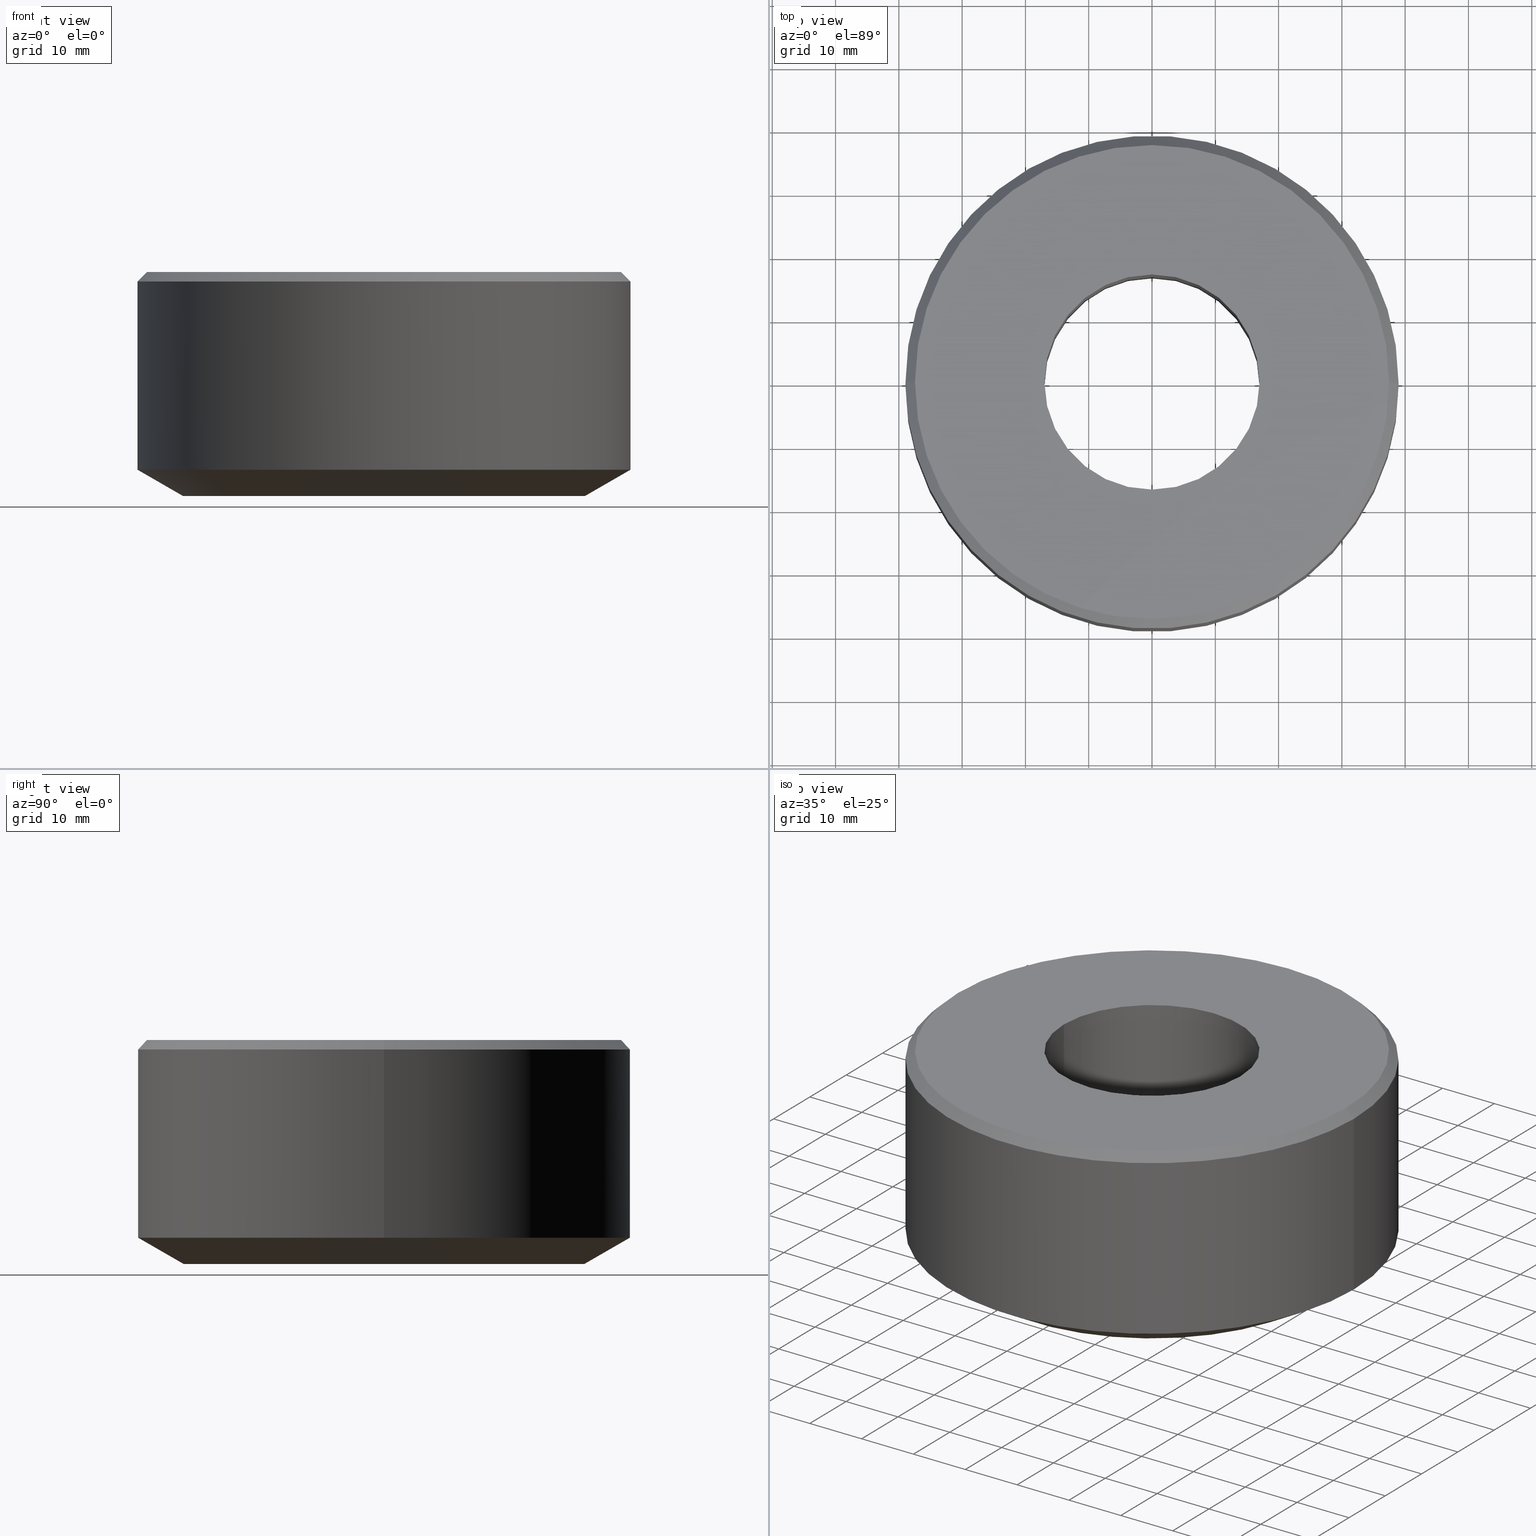
[diagram: canonical four-view strip — front | top / right | iso, engineering-drawing reading convention]
A machine part, canonical four-view strip (front | top / right | iso — engineering-drawing reading convention). The complete STEP part file that produces these views, byte-faithful:
ISO-10303-21;
HEADER;
FILE_DESCRIPTION (( 'STEP AP203' ),
    '1' );
FILE_NAME ('UM ER 50 SLOTTED.STEP',
    '2019-04-22T07:56:41',
    ( '' ),
    ( '' ),
    'SwSTEP 2.0',
    'SolidWorks 2014',
    '' );
FILE_SCHEMA (( 'CONFIG_CONTROL_DESIGN' ));
ENDSEC;

DATA;
#1 = DIRECTION ( 'NONE',  ( -0.0000000000000000000, -0.0000000000000000000, 1.000000000000000000 ) ) ;
#2 = ORIENTED_EDGE ( 'NONE', *, *, #175, .F. ) ;
#3 = CARTESIAN_POINT ( 'NONE',  ( 0.0000000000000000000, 0.0000000000000000000, 16.20000000000000600 ) ) ;
#4 = FACE_OUTER_BOUND ( 'NONE', #50, .T. ) ;
#5 = DIRECTION ( 'NONE',  ( 1.000000000000000000, 0.0000000000000000000, 0.0000000000000000000 ) ) ;
#6 = CARTESIAN_POINT ( 'NONE',  ( 0.0000000000000000000, 0.0000000000000000000, 16.20000000000000600 ) ) ;
#7 = ORIENTED_EDGE ( 'NONE', *, *, #235, .T. ) ;
#8 = LINE ( 'NONE', #252, #223 ) ;
#9 = DIRECTION ( 'NONE',  ( -1.000000000000000000, 0.0000000000000000000, -0.0000000000000000000 ) ) ;
#10 = ORIENTED_EDGE ( 'NONE', *, *, #235, .F. ) ;
#11 = LOCAL_TIME ( 13, 26, 41.00000000000000000, #81 ) ;
#12 = FACE_OUTER_BOUND ( 'NONE', #77, .T. ) ;
#13 = ORIENTED_EDGE ( 'NONE', *, *, #337, .F. ) ;
#14 = CARTESIAN_POINT ( 'NONE',  ( 31.75000000000000000, 0.0000000000000000000, -17.69999999999999900 ) ) ;
#15 = DIRECTION ( 'NONE',  ( -0.0000000000000000000, -0.0000000000000000000, 1.000000000000000000 ) ) ;
#16 = DIRECTION ( 'NONE',  ( -0.0000000000000000000, -0.0000000000000000000, 1.000000000000000000 ) ) ;
#17 = ORIENTED_EDGE ( 'NONE', *, *, #242, .F. ) ;
#18 = FACE_OUTER_BOUND ( 'NONE', #159, .T. ) ;
#19 = APPROVAL ( #317, 'UNSPECIFIED' ) ;
#20 = APPROVAL_DATE_TIME ( #92, #34 ) ;
#21 = PERSON_AND_ORGANIZATION_ROLE ( 'creator' ) ;
#22 = CARTESIAN_POINT ( 'NONE',  ( 38.95000000000000300, 4.769999282678941600E-015, 16.20000000000000600 ) ) ;
#23 = AXIS2_PLACEMENT_3D ( 'NONE', #79, #139, #68 ) ;
#24 = CARTESIAN_POINT ( 'NONE',  ( 0.0000000000000000000, 0.0000000000000000000, 17.69999999999999900 ) ) ;
#25 = PRODUCT_DEFINITION_FORMATION_WITH_SPECIFIED_SOURCE ( 'ANY', '', #319, .NOT_KNOWN. ) ;
#26 = VECTOR ( 'NONE', #205, 1000.000000000000000 ) ;
#27 = ADVANCED_FACE ( 'NONE', ( #137 ), #42, .F. ) ;
#28 = ORIENTED_EDGE ( 'NONE', *, *, #280, .F. ) ;
#29 = APPROVAL_PERSON_ORGANIZATION ( #96, #34, #244 ) ;
#30 = CARTESIAN_POINT ( 'NONE',  ( 0.0000000000000000000, 0.0000000000000000000, 0.0000000000000000000 ) ) ;
#31 = DIRECTION ( 'NONE',  ( 1.000000000000000000, 0.0000000000000000000, 0.0000000000000000000 ) ) ;
#32 = EDGE_LOOP ( 'NONE', ( #17, #2, #329, #201 ) ) ;
#33 = DIRECTION ( 'NONE',  ( 0.0000000000000000000, 0.0000000000000000000, -1.000000000000000000 ) ) ;
#34 = APPROVAL ( #46, 'UNSPECIFIED' ) ;
#35 = AXIS2_PLACEMENT_3D ( 'NONE', #269, #102, #299 ) ;
#36 = CC_DESIGN_APPROVAL ( #34, ( #25 ) ) ;
#37 = CARTESIAN_POINT ( 'NONE',  ( 0.0000000000000000000, 31.75000000000000000, -17.69999999999999900 ) ) ;
#38 = CARTESIAN_POINT ( 'NONE',  ( 38.95000000000000300, 0.0000000000000000000, 43.26054273766887100 ) ) ;
#39 = DIRECTION ( 'NONE',  ( 1.000000000000000000, 0.0000000000000000000, 0.0000000000000000000 ) ) ;
#40 = CARTESIAN_POINT ( 'NONE',  ( 16.99999999999999600, 0.0000000000000000000, 17.69999999999999900 ) ) ;
#41 = AXIS2_PLACEMENT_3D ( 'NONE', #37, #333, #178 ) ;
#42 = CYLINDRICAL_SURFACE ( 'NONE', #231, 17.00000000000000000 ) ;
#43 = APPROVAL_DATE_TIME ( #111, #19 ) ;
#44 = ORIENTED_EDGE ( 'NONE', *, *, #123, .F. ) ;
#45 = CARTESIAN_POINT ( 'NONE',  ( 0.0000000000000000000, 0.0000000000000000000, 43.26054273766887100 ) ) ;
#46 = APPROVAL_STATUS ( 'not_yet_approved' ) ;
#47 = LINE ( 'NONE', #206, #263 ) ;
#48 = CIRCLE ( 'NONE', #254, 17.00000000000000000 ) ;
#49 = CALENDAR_DATE ( 2019, 22, 4 ) ;
#50 = EDGE_LOOP ( 'NONE', ( #10, #64, #199, #61 ) ) ;
#51 = DIRECTION ( 'NONE',  ( 1.000000000000000000, 0.0000000000000000000, 0.0000000000000000000 ) ) ;
#52 = VERTEX_POINT ( 'NONE', #97 ) ;
#53 = ORIENTED_EDGE ( 'NONE', *, *, #309, .F. ) ;
#54 = AXIS2_PLACEMENT_3D ( 'NONE', #118, #310, #152 ) ;
#55 = ORIENTED_EDGE ( 'NONE', *, *, #246, .F. ) ;
#56 = DIRECTION ( 'NONE',  ( -0.0000000000000000000, -0.0000000000000000000, 1.000000000000000000 ) ) ;
#57 = DATE_AND_TIME ( #129, #204 ) ;
#58 = DIRECTION ( 'NONE',  ( -0.0000000000000000000, -0.0000000000000000000, 1.000000000000000000 ) ) ;
#59 = ORIENTED_EDGE ( 'NONE', *, *, #113, .F. ) ;
#60 = ADVANCED_FACE ( 'NONE', ( #330 ), #158, .T. ) ;
#61 = ORIENTED_EDGE ( 'NONE', *, *, #287, .F. ) ;
#62 = CC_DESIGN_PERSON_AND_ORGANIZATION_ASSIGNMENT ( #157, #295, ( #251 ) ) ;
#63 = ORIENTED_EDGE ( 'NONE', *, *, #93, .F. ) ;
#64 = ORIENTED_EDGE ( 'NONE', *, *, #292, .T. ) ;
#65 = DIRECTION ( 'NONE',  ( 0.8660254037844396000, 0.0000000000000000000, 0.4999999999999983900 ) ) ;
#66 = PERSON_AND_ORGANIZATION ( #339, #216 ) ;
#67 = DIRECTION ( 'NONE',  ( -0.0000000000000000000, -0.0000000000000000000, 1.000000000000000000 ) ) ;
#68 = DIRECTION ( 'NONE',  ( 1.000000000000000000, 0.0000000000000000000, 0.0000000000000000000 ) ) ;
#69 = CARTESIAN_POINT ( 'NONE',  ( 17.00000000000000000, 0.0000000000000000000, -17.70000000000000600 ) ) ;
#70 = AXIS2_PLACEMENT_3D ( 'NONE', #150, #335, #179 ) ;
#71 = DIRECTION ( 'NONE',  ( -0.0000000000000000000, -0.0000000000000000000, 1.000000000000000000 ) ) ;
#72 = EDGE_LOOP ( 'NONE', ( #84, #342 ) ) ;
#73 = APPROVAL_PERSON_ORGANIZATION ( #146, #19, #162 ) ;
#74 = CIRCLE ( 'NONE', #224, 38.95000000000000300 ) ;
#75 = ADVANCED_FACE ( 'NONE', ( #189, #182 ), #277, .F. ) ;
#76 = PERSON_AND_ORGANIZATION_ROLE ( 'creator' ) ;
#77 = EDGE_LOOP ( 'NONE', ( #55, #288, #120, #268 ) ) ;
#78 = LINE ( 'NONE', #14, #230 ) ;
#79 = CARTESIAN_POINT ( 'NONE',  ( 0.0000000000000000000, 0.0000000000000000000, 43.26054273766887100 ) ) ;
#80 = DIRECTION ( 'NONE',  ( -0.0000000000000000000, -0.0000000000000000000, 1.000000000000000000 ) ) ;
#81 = COORDINATED_UNIVERSAL_TIME_OFFSET ( 5, 30, .AHEAD. ) ;
#82 = LINE ( 'NONE', #86, #147 ) ;
#83 = ADVANCED_FACE ( 'NONE', ( #250 ), #222, .T. ) ;
#84 = ORIENTED_EDGE ( 'NONE', *, *, #175, .T. ) ;
#85 = AXIS2_PLACEMENT_3D ( 'NONE', #261, #156, #169 ) ;
#86 = CARTESIAN_POINT ( 'NONE',  ( -17.00000000000000000, 2.081899558550500300E-015, 43.26054273766887100 ) ) ;
#87 = CC_DESIGN_APPROVAL ( #243, ( #348 ) ) ;
#88 = ORIENTED_EDGE ( 'NONE', *, *, #93, .T. ) ;
#89 = AXIS2_PLACEMENT_3D ( 'NONE', #324, #173, #5 ) ;
#90 = CIRCLE ( 'NONE', #54, 16.99999999999999600 ) ;
#91 = ORIENTED_EDGE ( 'NONE', *, *, #328, .T. ) ;
#92 = DATE_AND_TIME ( #166, #241 ) ;
#93 = EDGE_CURVE ( 'NONE', #219, #211, #110, .T. ) ;
#94 = DIRECTION ( 'NONE',  ( -0.0000000000000000000, -0.0000000000000000000, 1.000000000000000000 ) ) ;
#95 = AXIS2_PLACEMENT_3D ( 'NONE', #119, #239, #151 ) ;
#96 = PERSON_AND_ORGANIZATION ( #339, #216 ) ;
#97 = CARTESIAN_POINT ( 'NONE',  ( -17.00000000000000000, 2.081899558550500300E-015, -17.70000000000000600 ) ) ;
#98 = DIRECTION ( 'NONE',  ( 1.000000000000000000, 0.0000000000000000000, 0.0000000000000000000 ) ) ;
#99 = MANIFOLD_SOLID_BREP ( 'Revolve1', #341 ) ;
#100 = SECURITY_CLASSIFICATION_LEVEL ( 'unclassified' ) ;
#101 = ORIENTED_EDGE ( 'NONE', *, *, #181, .F. ) ;
#102 = DIRECTION ( 'NONE',  ( -0.0000000000000000000, -0.0000000000000000000, 1.000000000000000000 ) ) ;
#103 =( LENGTH_UNIT ( ) NAMED_UNIT ( * ) SI_UNIT ( .MILLI., .METRE. ) );
#104 = CARTESIAN_POINT ( 'NONE',  ( -31.75000000000000000, 4.329126434985894400E-015, -17.69999999999999900 ) ) ;
#105 =( GEOMETRIC_REPRESENTATION_CONTEXT ( 3 ) GLOBAL_UNCERTAINTY_ASSIGNED_CONTEXT ( ( #170 ) ) GLOBAL_UNIT_ASSIGNED_CONTEXT ( ( #103, #301, #136 ) ) REPRESENTATION_CONTEXT ( 'NONE', 'WORKASPACE' ) );
#106 = VECTOR ( 'NONE', #141, 1000.000000000000000 ) ;
#107 = CC_DESIGN_PERSON_AND_ORGANIZATION_ASSIGNMENT ( #234, #264, ( #25 ) ) ;
#108 = LINE ( 'NONE', #294, #106 ) ;
#109 = DIRECTION ( 'NONE',  ( -1.000000000000000000, 0.0000000000000000000, 0.0000000000000000000 ) ) ;
#110 = CIRCLE ( 'NONE', #227, 38.95000000000000300 ) ;
#111 = DATE_AND_TIME ( #190, #259 ) ;
#112 = ORIENTED_EDGE ( 'NONE', *, *, #267, .T. ) ;
#113 = EDGE_CURVE ( 'NONE', #52, #291, #82, .T. ) ;
#114 = PLANE ( 'NONE',  #41 ) ;
#115 = CYLINDRICAL_SURFACE ( 'NONE', #318, 38.95000000000000300 ) ;
#116 = CIRCLE ( 'NONE', #282, 37.45000000000000300 ) ;
#117 = LOCAL_TIME ( 13, 26, 41.00000000000000000, #198 ) ;
#118 = CARTESIAN_POINT ( 'NONE',  ( 0.0000000000000000000, 0.0000000000000000000, 17.69999999999999900 ) ) ;
#119 = CARTESIAN_POINT ( 'NONE',  ( 0.0000000000000000000, 0.0000000000000000000, -17.69999999999999900 ) ) ;
#120 = ORIENTED_EDGE ( 'NONE', *, *, #238, .T. ) ;
#121 = VERTEX_POINT ( 'NONE', #104 ) ;
#122 = VERTEX_POINT ( 'NONE', #144 ) ;
#123 = EDGE_CURVE ( 'NONE', #122, #273, #74, .T. ) ;
#124 = ORIENTED_EDGE ( 'NONE', *, *, #313, .T. ) ;
#125 = PRODUCT_RELATED_PRODUCT_CATEGORY ( 'detail', '', ( #319 ) ) ;
#126 = PERSON_AND_ORGANIZATION_ROLE ( 'design_owner' ) ;
#127 = DIRECTION ( 'NONE',  ( 1.000000000000000000, 0.0000000000000000000, 0.0000000000000000000 ) ) ;
#128 = DATE_TIME_ROLE ( 'classification_date' ) ;
#129 = CALENDAR_DATE ( 2019, 22, 4 ) ;
#130 = DESIGN_CONTEXT ( 'detailed design', #315, 'design' ) ;
#131 = CC_DESIGN_DATE_AND_TIME_ASSIGNMENT ( #177, #214, ( #348 ) ) ;
#132 = ORIENTED_EDGE ( 'NONE', *, *, #113, .T. ) ;
#133 = CC_DESIGN_PERSON_AND_ORGANIZATION_ASSIGNMENT ( #140, #126, ( #319 ) ) ;
#134 = ORIENTED_EDGE ( 'NONE', *, *, #287, .T. ) ;
#135 = ADVANCED_FACE ( 'NONE', ( #12 ), #240, .T. ) ;
#136 =( NAMED_UNIT ( * ) SI_UNIT ( $, .STERADIAN. ) SOLID_ANGLE_UNIT ( ) );
#137 = FACE_OUTER_BOUND ( 'NONE', #332, .T. ) ;
#138 = ORIENTED_EDGE ( 'NONE', *, *, #280, .T. ) ;
#139 = DIRECTION ( 'NONE',  ( -0.0000000000000000000, -0.0000000000000000000, 1.000000000000000000 ) ) ;
#140 = PERSON_AND_ORGANIZATION ( #339, #216 ) ;
#141 = DIRECTION ( 'NONE',  ( -0.7071067811865491300, 0.0000000000000000000, -0.7071067811865459100 ) ) ;
#142 = CARTESIAN_POINT ( 'NONE',  ( 38.95000000000000300, 4.769999282678941600E-015, 16.20000000000000600 ) ) ;
#143 = CARTESIAN_POINT ( 'NONE',  ( 0.0000000000000000000, 0.0000000000000000000, -13.54307806183471100 ) ) ;
#144 = CARTESIAN_POINT ( 'NONE',  ( -38.95000000000000300, 0.0000000000000000000, 16.20000000000000600 ) ) ;
#145 = ORIENTED_EDGE ( 'NONE', *, *, #238, .F. ) ;
#146 = PERSON_AND_ORGANIZATION ( #339, #216 ) ;
#147 = VECTOR ( 'NONE', #56, 1000.000000000000000 ) ;
#148 = DIRECTION ( 'NONE',  ( 1.000000000000000000, 0.0000000000000000000, 0.0000000000000000000 ) ) ;
#149 = ORIENTED_EDGE ( 'NONE', *, *, #313, .F. ) ;
#150 = CARTESIAN_POINT ( 'NONE',  ( 0.0000000000000000000, 0.0000000000000000000, -13.54307806183471100 ) ) ;
#151 = DIRECTION ( 'NONE',  ( 1.000000000000000000, 0.0000000000000000000, 0.0000000000000000000 ) ) ;
#152 = DIRECTION ( 'NONE',  ( 1.000000000000000000, 0.0000000000000000000, 0.0000000000000000000 ) ) ;
#153 = ORIENTED_EDGE ( 'NONE', *, *, #154, .F. ) ;
#154 = EDGE_CURVE ( 'NONE', #219, #273, #307, .T. ) ;
#155 = AXIS2_PLACEMENT_3D ( 'NONE', #167, #1, #194 ) ;
#156 = DIRECTION ( 'NONE',  ( -0.0000000000000000000, -0.0000000000000000000, 1.000000000000000000 ) ) ;
#157 = PERSON_AND_ORGANIZATION ( #339, #216 ) ;
#158 = CONICAL_SURFACE ( 'NONE', #85, 31.75000000000000000, 1.047197551196599600 ) ;
#159 = EDGE_LOOP ( 'NONE', ( #28, #132, #340, #149 ) ) ;
#160 = APPLICATION_PROTOCOL_DEFINITION ( 'international standard', 'config_control_design', 1994, #315 ) ;
#161 = CARTESIAN_POINT ( 'NONE',  ( 0.0000000000000000000, 0.0000000000000000000, 17.69999999999999900 ) ) ;
#162 = APPROVAL_ROLE ( '' ) ;
#163 = EDGE_CURVE ( 'NONE', #208, #291, #90, .T. ) ;
#164 = CIRCLE ( 'NONE', #35, 31.75000000000000000 ) ;
#165 = APPLICATION_PROTOCOL_DEFINITION ( 'international standard', 'config_control_design', 1994, #193 ) ;
#166 = CALENDAR_DATE ( 2019, 22, 4 ) ;
#167 = CARTESIAN_POINT ( 'NONE',  ( 0.0000000000000000000, 0.0000000000000000000, -17.70000000000000600 ) ) ;
#168 = DIRECTION ( 'NONE',  ( -1.000000000000000000, 0.0000000000000000000, 0.0000000000000000000 ) ) ;
#169 = DIRECTION ( 'NONE',  ( 1.000000000000000000, 0.0000000000000000000, 0.0000000000000000000 ) ) ;
#170 = UNCERTAINTY_MEASURE_WITH_UNIT (LENGTH_MEASURE( 1.000000000000000100E-005 ), #103, 'distance_accuracy_value', 'NONE');
#171 = AXIS2_PLACEMENT_3D ( 'NONE', #24, #217, #51 ) ;
#172 = CARTESIAN_POINT ( 'NONE',  ( -16.99999999999999600, 2.081899558550499900E-015, 17.69999999999999900 ) ) ;
#173 = DIRECTION ( 'NONE',  ( -0.0000000000000000000, -0.0000000000000000000, 1.000000000000000000 ) ) ;
#174 = DIRECTION ( 'NONE',  ( 1.000000000000000000, 0.0000000000000000000, 0.0000000000000000000 ) ) ;
#175 = EDGE_CURVE ( 'NONE', #321, #203, #300, .T. ) ;
#176 = DIRECTION ( 'NONE',  ( 0.0000000000000000000, 0.0000000000000000000, -1.000000000000000000 ) ) ;
#177 = DATE_AND_TIME ( #49, #117 ) ;
#178 = DIRECTION ( 'NONE',  ( 1.000000000000000000, 0.0000000000000000000, 0.0000000000000000000 ) ) ;
#179 = DIRECTION ( 'NONE',  ( 1.000000000000000000, 0.0000000000000000000, 0.0000000000000000000 ) ) ;
#180 = CARTESIAN_POINT ( 'NONE',  ( 38.95000000000000300, 0.0000000000000000000, -13.54307806183471100 ) ) ;
#181 = EDGE_CURVE ( 'NONE', #236, #121, #164, .T. ) ;
#182 = FACE_OUTER_BOUND ( 'NONE', #72, .T. ) ;
#183 = ADVANCED_FACE ( 'NONE', ( #18 ), #233, .F. ) ;
#184 = ADVANCED_BREP_SHAPE_REPRESENTATION ( 'UM ER 50 SLOTTED', ( #99, #334 ), #105 ) ;
#185 = APPROVAL_ROLE ( '' ) ;
#186 = DIRECTION ( 'NONE',  ( 1.000000000000000000, 0.0000000000000000000, 0.0000000000000000000 ) ) ;
#187 = FACE_OUTER_BOUND ( 'NONE', #225, .T. ) ;
#188 = FACE_OUTER_BOUND ( 'NONE', #338, .T. ) ;
#189 = FACE_BOUND ( 'NONE', #213, .T. ) ;
#190 = CALENDAR_DATE ( 2019, 22, 4 ) ;
#191 = CC_DESIGN_SECURITY_CLASSIFICATION ( #251, ( #25 ) ) ;
#192 = ORIENTED_EDGE ( 'NONE', *, *, #154, .T. ) ;
#193 = APPLICATION_CONTEXT ( 'configuration controlled 3d designs of mechanical parts and assemblies' ) ;
#194 = DIRECTION ( 'NONE',  ( 1.000000000000000000, 0.0000000000000000000, 0.0000000000000000000 ) ) ;
#195 = DIRECTION ( 'NONE',  ( -0.0000000000000000000, -0.0000000000000000000, 1.000000000000000000 ) ) ;
#196 = CYLINDRICAL_SURFACE ( 'NONE', #245, 38.95000000000000300 ) ;
#197 = CIRCLE ( 'NONE', #274, 31.75000000000000000 ) ;
#198 = COORDINATED_UNIVERSAL_TIME_OFFSET ( 5, 30, .AHEAD. ) ;
#199 = ORIENTED_EDGE ( 'NONE', *, *, #309, .T. ) ;
#200 = CIRCLE ( 'NONE', #343, 16.99999999999999600 ) ;
#201 = ORIENTED_EDGE ( 'NONE', *, *, #123, .T. ) ;
#202 = ORIENTED_EDGE ( 'NONE', *, *, #292, .F. ) ;
#203 = VERTEX_POINT ( 'NONE', #207 ) ;
#204 = LOCAL_TIME ( 13, 26, 41.00000000000000000, #276 ) ;
#205 = DIRECTION ( 'NONE',  ( -0.0000000000000000000, -0.0000000000000000000, 1.000000000000000000 ) ) ;
#206 = CARTESIAN_POINT ( 'NONE',  ( -31.75000000000000000, 3.888253587292846500E-015, -17.69999999999999900 ) ) ;
#207 = CARTESIAN_POINT ( 'NONE',  ( 37.45000000000000300, 4.678150772742890200E-015, 17.69999999999999900 ) ) ;
#208 = VERTEX_POINT ( 'NONE', #40 ) ;
#209 = DIRECTION ( 'NONE',  ( 1.000000000000000000, 0.0000000000000000000, 0.0000000000000000000 ) ) ;
#210 = ADVANCED_FACE ( 'NONE', ( #258 ), #196, .T. ) ;
#211 = VERTEX_POINT ( 'NONE', #311 ) ;
#212 = ORIENTED_EDGE ( 'NONE', *, *, #181, .T. ) ;
#213 = EDGE_LOOP ( 'NONE', ( #260, #13 ) ) ;
#214 = DATE_TIME_ROLE ( 'creation_date' ) ;
#215 = DIRECTION ( 'NONE',  ( -0.0000000000000000000, -0.0000000000000000000, 1.000000000000000000 ) ) ;
#216 = ORGANIZATION ( 'UNSPECIFIED', 'UNSPECIFIED', '' ) ;
#217 = DIRECTION ( 'NONE',  ( -0.0000000000000000000, -0.0000000000000000000, 1.000000000000000000 ) ) ;
#218 = ADVANCED_FACE ( 'NONE', ( #4 ), #253, .T. ) ;
#219 = VERTEX_POINT ( 'NONE', #180 ) ;
#220 = DIRECTION ( 'NONE',  ( 0.0000000000000000000, 0.0000000000000000000, 1.000000000000000000 ) ) ;
#221 = DATE_AND_TIME ( #289, #11 ) ;
#222 = CONICAL_SURFACE ( 'NONE', #314, 38.95000000000000300, 0.7853981633974506100 ) ;
#223 = VECTOR ( 'NONE', #15, 1000.000000000000000 ) ;
#224 = AXIS2_PLACEMENT_3D ( 'NONE', #3, #195, #31 ) ;
#225 = EDGE_LOOP ( 'NONE', ( #281, #134, #192, #44 ) ) ;
#226 = ADVANCED_FACE ( 'NONE', ( #187 ), #115, .T. ) ;
#227 = AXIS2_PLACEMENT_3D ( 'NONE', #143, #327, #174 ) ;
#228 = CARTESIAN_POINT ( 'NONE',  ( 0.0000000000000000000, 0.0000000000000000000, -17.70000000000000600 ) ) ;
#229 = VERTEX_POINT ( 'NONE', #69 ) ;
#230 = VECTOR ( 'NONE', #65, 1000.000000000000000 ) ;
#231 = AXIS2_PLACEMENT_3D ( 'NONE', #45, #71, #209 ) ;
#232 = CARTESIAN_POINT ( 'NONE',  ( 0.0000000000000000000, 0.0000000000000000000, 16.20000000000000600 ) ) ;
#233 = CYLINDRICAL_SURFACE ( 'NONE', #23, 17.00000000000000000 ) ;
#234 = PERSON_AND_ORGANIZATION ( #339, #216 ) ;
#235 = EDGE_CURVE ( 'NONE', #121, #211, #47, .T. ) ;
#236 = VERTEX_POINT ( 'NONE', #256 ) ;
#237 = CARTESIAN_POINT ( 'NONE',  ( 0.0000000000000000000, 0.0000000000000000000, -17.69999999999999900 ) ) ;
#238 = EDGE_CURVE ( 'NONE', #273, #122, #320, .T. ) ;
#239 = DIRECTION ( 'NONE',  ( -0.0000000000000000000, -0.0000000000000000000, 1.000000000000000000 ) ) ;
#240 = CONICAL_SURFACE ( 'NONE', #312, 38.95000000000000300, 0.7853981633974506100 ) ;
#241 = LOCAL_TIME ( 13, 26, 41.00000000000000000, #308 ) ;
#242 = EDGE_CURVE ( 'NONE', #203, #273, #290, .T. ) ;
#243 = APPROVAL ( #344, 'UNSPECIFIED' ) ;
#244 = APPROVAL_ROLE ( '' ) ;
#245 = AXIS2_PLACEMENT_3D ( 'NONE', #257, #94, #284 ) ;
#246 = EDGE_CURVE ( 'NONE', #203, #321, #116, .T. ) ;
#247 = CARTESIAN_POINT ( 'NONE',  ( 0.0000000000000000000, 0.0000000000000000000, 17.69999999999999900 ) ) ;
#248 = CC_DESIGN_APPROVAL ( #19, ( #251 ) ) ;
#249 = DIRECTION ( 'NONE',  ( -0.8660254037844396000, 1.060575238724908000E-016, 0.4999999999999983900 ) ) ;
#250 = FACE_OUTER_BOUND ( 'NONE', #32, .T. ) ;
#251 = SECURITY_CLASSIFICATION ( '', '', #100 ) ;
#252 = CARTESIAN_POINT ( 'NONE',  ( 17.00000000000000000, 0.0000000000000000000, 43.26054273766887100 ) ) ;
#253 = CONICAL_SURFACE ( 'NONE', #95, 31.75000000000000000, 1.047197551196599600 ) ;
#254 = AXIS2_PLACEMENT_3D ( 'NONE', #228, #58, #127 ) ;
#255 = VECTOR ( 'NONE', #215, 1000.000000000000000 ) ;
#256 = CARTESIAN_POINT ( 'NONE',  ( 31.75000000000000000, 0.0000000000000000000, -17.69999999999999900 ) ) ;
#257 = CARTESIAN_POINT ( 'NONE',  ( 0.0000000000000000000, 0.0000000000000000000, 43.26054273766887100 ) ) ;
#258 = FACE_OUTER_BOUND ( 'NONE', #270, .T. ) ;
#259 = LOCAL_TIME ( 13, 26, 41.00000000000000000, #331 ) ;
#260 = ORIENTED_EDGE ( 'NONE', *, *, #163, .F. ) ;
#261 = CARTESIAN_POINT ( 'NONE',  ( 0.0000000000000000000, 0.0000000000000000000, -17.69999999999999900 ) ) ;
#262 = AXIS2_PLACEMENT_3D ( 'NONE', #306, #176, #9 ) ;
#263 = VECTOR ( 'NONE', #249, 1000.000000000000000 ) ;
#264 = PERSON_AND_ORGANIZATION_ROLE ( 'design_supplier' ) ;
#265 = VECTOR ( 'NONE', #275, 1000.000000000000000 ) ;
#266 = PERSON_AND_ORGANIZATION ( #339, #216 ) ;
#267 = EDGE_CURVE ( 'NONE', #211, #122, #326, .T. ) ;
#268 = ORIENTED_EDGE ( 'NONE', *, *, #278, .F. ) ;
#269 = CARTESIAN_POINT ( 'NONE',  ( 0.0000000000000000000, 0.0000000000000000000, -17.69999999999999900 ) ) ;
#270 = EDGE_LOOP ( 'NONE', ( #88, #112, #145, #153 ) ) ;
#271 = DIRECTION ( 'NONE',  ( 1.000000000000000000, 0.0000000000000000000, 0.0000000000000000000 ) ) ;
#272 = CC_DESIGN_PERSON_AND_ORGANIZATION_ASSIGNMENT ( #302, #76, ( #25 ) ) ;
#273 = VERTEX_POINT ( 'NONE', #22 ) ;
#274 = AXIS2_PLACEMENT_3D ( 'NONE', #237, #67, #148 ) ;
#275 = DIRECTION ( 'NONE',  ( 0.7071067811865491300, 8.659560562354952600E-017, -0.7071067811865459100 ) ) ;
#276 = COORDINATED_UNIVERSAL_TIME_OFFSET ( 5, 30, .AHEAD. ) ;
#277 = PLANE ( 'NONE',  #262 ) ;
#278 = EDGE_CURVE ( 'NONE', #321, #122, #108, .T. ) ;
#279 = EDGE_LOOP ( 'NONE', ( #91, #138 ) ) ;
#280 = EDGE_CURVE ( 'NONE', #52, #229, #48, .T. ) ;
#281 = ORIENTED_EDGE ( 'NONE', *, *, #267, .F. ) ;
#282 = AXIS2_PLACEMENT_3D ( 'NONE', #161, #345, #186 ) ;
#283 = SHAPE_DEFINITION_REPRESENTATION ( #325, #184 ) ;
#284 = DIRECTION ( 'NONE',  ( 1.000000000000000000, 0.0000000000000000000, 0.0000000000000000000 ) ) ;
#285 = ORIENTED_EDGE ( 'NONE', *, *, #328, .F. ) ;
#286 = CIRCLE ( 'NONE', #155, 17.00000000000000000 ) ;
#287 = EDGE_CURVE ( 'NONE', #211, #219, #322, .T. ) ;
#288 = ORIENTED_EDGE ( 'NONE', *, *, #242, .T. ) ;
#289 = CALENDAR_DATE ( 2019, 22, 4 ) ;
#290 = LINE ( 'NONE', #142, #265 ) ;
#291 = VERTEX_POINT ( 'NONE', #172 ) ;
#292 = EDGE_CURVE ( 'NONE', #121, #236, #197, .T. ) ;
#293 = MECHANICAL_CONTEXT ( 'NONE', #193, 'mechanical' ) ;
#294 = CARTESIAN_POINT ( 'NONE',  ( -38.95000000000000300, 0.0000000000000000000, 16.20000000000000600 ) ) ;
#295 = PERSON_AND_ORGANIZATION_ROLE ( 'classification_officer' ) ;
#296 = EDGE_LOOP ( 'NONE', ( #212, #7, #63, #53 ) ) ;
#297 = FACE_BOUND ( 'NONE', #279, .T. ) ;
#298 = CC_DESIGN_PERSON_AND_ORGANIZATION_ASSIGNMENT ( #266, #21, ( #348 ) ) ;
#299 = DIRECTION ( 'NONE',  ( 1.000000000000000000, 0.0000000000000000000, 0.0000000000000000000 ) ) ;
#300 = CIRCLE ( 'NONE', #171, 37.45000000000000300 ) ;
#301 =( NAMED_UNIT ( * ) PLANE_ANGLE_UNIT ( ) SI_UNIT ( $, .RADIAN. ) );
#302 = PERSON_AND_ORGANIZATION ( #339, #216 ) ;
#303 = ADVANCED_FACE ( 'NONE', ( #188, #297 ), #114, .F. ) ;
#304 = ORIENTED_EDGE ( 'NONE', *, *, #163, .T. ) ;
#305 = DIRECTION ( 'NONE',  ( 0.0000000000000000000, 0.0000000000000000000, -1.000000000000000000 ) ) ;
#306 = CARTESIAN_POINT ( 'NONE',  ( 0.0000000000000000000, 16.99999999999999600, 17.69999999999999900 ) ) ;
#307 = LINE ( 'NONE', #38, #26 ) ;
#308 = COORDINATED_UNIVERSAL_TIME_OFFSET ( 5, 30, .AHEAD. ) ;
#309 = EDGE_CURVE ( 'NONE', #236, #219, #78, .T. ) ;
#310 = DIRECTION ( 'NONE',  ( -0.0000000000000000000, -0.0000000000000000000, 1.000000000000000000 ) ) ;
#311 = CARTESIAN_POINT ( 'NONE',  ( -38.95000000000000300, 4.769999282678941600E-015, -13.54307806183471100 ) ) ;
#312 = AXIS2_PLACEMENT_3D ( 'NONE', #6, #305, #168 ) ;
#313 = EDGE_CURVE ( 'NONE', #229, #208, #8, .T. ) ;
#314 = AXIS2_PLACEMENT_3D ( 'NONE', #232, #33, #109 ) ;
#315 = APPLICATION_CONTEXT ( 'configuration controlled 3d designs of mechanical parts and assemblies' ) ;
#316 = CARTESIAN_POINT ( 'NONE',  ( -38.95000000000000300, 4.769999282678941600E-015, 43.26054273766887100 ) ) ;
#317 = APPROVAL_STATUS ( 'not_yet_approved' ) ;
#318 = AXIS2_PLACEMENT_3D ( 'NONE', #349, #16, #39 ) ;
#319 = PRODUCT ( 'UM ER 50 SLOTTED', 'UM ER 50 SLOTTED', '', ( #293 ) ) ;
#320 = CIRCLE ( 'NONE', #89, 38.95000000000000300 ) ;
#321 = VERTEX_POINT ( 'NONE', #323 ) ;
#322 = CIRCLE ( 'NONE', #70, 38.95000000000000300 ) ;
#323 = CARTESIAN_POINT ( 'NONE',  ( -37.45000000000000300, 0.0000000000000000000, 17.69999999999999900 ) ) ;
#324 = CARTESIAN_POINT ( 'NONE',  ( 0.0000000000000000000, 0.0000000000000000000, 16.20000000000000600 ) ) ;
#325 = PRODUCT_DEFINITION_SHAPE ( 'NONE', 'NONE',  #348 ) ;
#326 = LINE ( 'NONE', #316, #255 ) ;
#327 = DIRECTION ( 'NONE',  ( -0.0000000000000000000, -0.0000000000000000000, 1.000000000000000000 ) ) ;
#328 = EDGE_CURVE ( 'NONE', #229, #52, #286, .T. ) ;
#329 = ORIENTED_EDGE ( 'NONE', *, *, #278, .T. ) ;
#330 = FACE_OUTER_BOUND ( 'NONE', #296, .T. ) ;
#331 = COORDINATED_UNIVERSAL_TIME_OFFSET ( 5, 30, .AHEAD. ) ;
#332 = EDGE_LOOP ( 'NONE', ( #59, #285, #124, #304 ) ) ;
#333 = DIRECTION ( 'NONE',  ( 0.0000000000000000000, -0.0000000000000000000, 1.000000000000000000 ) ) ;
#334 = AXIS2_PLACEMENT_3D ( 'NONE', #30, #220, #98 ) ;
#335 = DIRECTION ( 'NONE',  ( -0.0000000000000000000, -0.0000000000000000000, 1.000000000000000000 ) ) ;
#336 = APPROVAL_DATE_TIME ( #57, #243 ) ;
#337 = EDGE_CURVE ( 'NONE', #291, #208, #200, .T. ) ;
#338 = EDGE_LOOP ( 'NONE', ( #101, #202 ) ) ;
#339 = PERSON ( 'UNSPECIFIED', 'UNSPECIFIED', 'UNSPECIFIED', ('UNSPECIFIED'), ('UNSPECIFIED'), ('UNSPECIFIED') ) ;
#340 = ORIENTED_EDGE ( 'NONE', *, *, #337, .T. ) ;
#341 = CLOSED_SHELL ( 'NONE', ( #60, #210, #135, #183, #27, #75, #83, #226, #218, #303 ) ) ;
#342 = ORIENTED_EDGE ( 'NONE', *, *, #246, .T. ) ;
#343 = AXIS2_PLACEMENT_3D ( 'NONE', #247, #80, #271 ) ;
#344 = APPROVAL_STATUS ( 'not_yet_approved' ) ;
#345 = DIRECTION ( 'NONE',  ( -0.0000000000000000000, -0.0000000000000000000, 1.000000000000000000 ) ) ;
#346 = APPROVAL_PERSON_ORGANIZATION ( #66, #243, #185 ) ;
#347 = CC_DESIGN_DATE_AND_TIME_ASSIGNMENT ( #221, #128, ( #251 ) ) ;
#348 = PRODUCT_DEFINITION ( 'UNKNOWN', '', #25, #130 ) ;
#349 = CARTESIAN_POINT ( 'NONE',  ( 0.0000000000000000000, 0.0000000000000000000, 43.26054273766887100 ) ) ;
ENDSEC;
END-ISO-10303-21;
